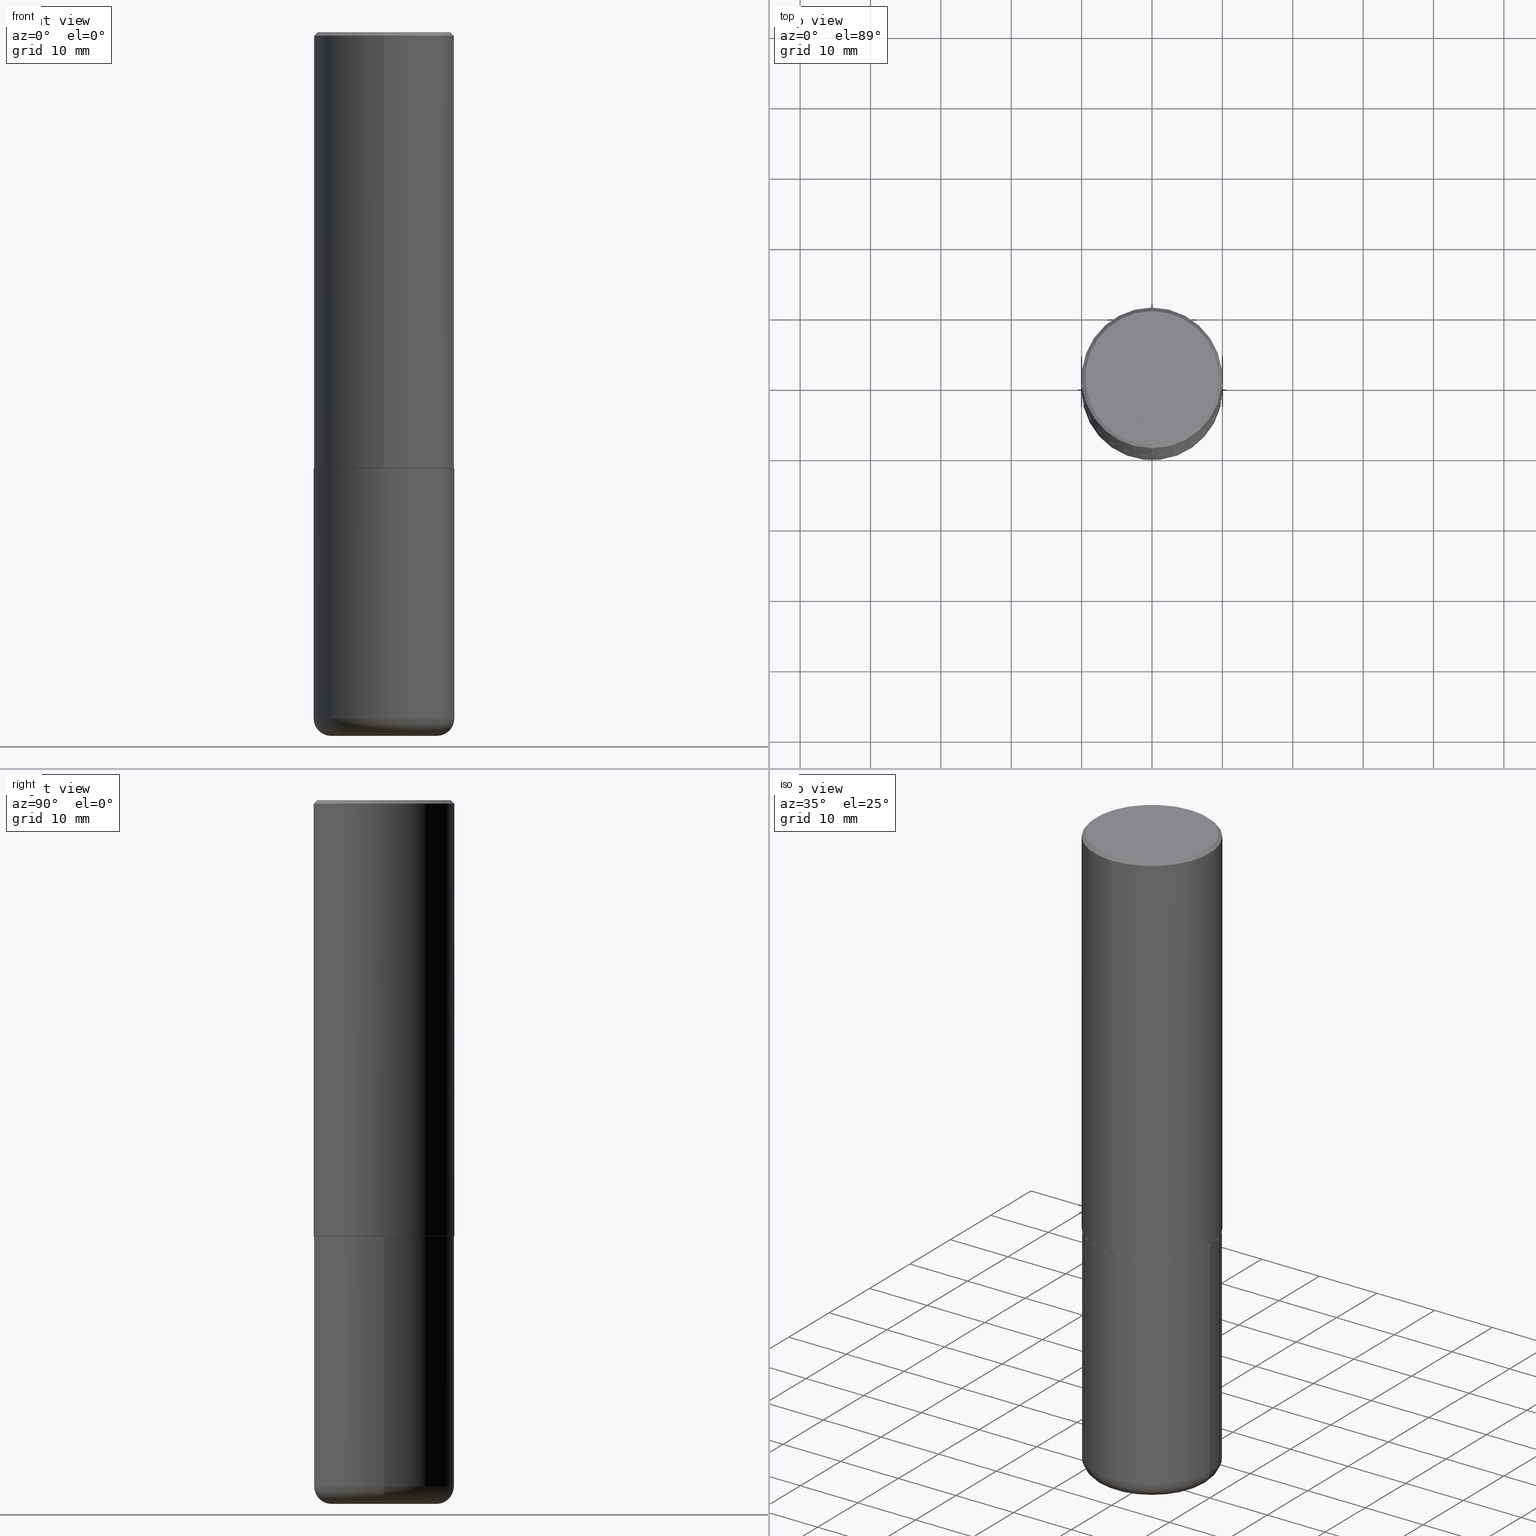
[diagram: canonical four-view strip — front | top / right | iso, engineering-drawing reading convention]
A machine part, canonical four-view strip (front | top / right | iso — engineering-drawing reading convention). The complete STEP part file that produces these views, byte-faithful:
ISO-10303-21;
HEADER;
FILE_DESCRIPTION (( 'STEP AP203' ),
    '1' );
FILE_NAME ('42697.STEP',
    '2024-03-04T02:34:28',
    ( '' ),
    ( '' ),
    'SwSTEP 2.0',
    'SolidWorks 2023',
    '' );
FILE_SCHEMA (( 'CONFIG_CONTROL_DESIGN' ));
ENDSEC;

DATA;
#1 = CARTESIAN_POINT ( 'NONE',  ( 0.2953000000000000069, -1.546446914600405306E-14, -3.838600000000000012 ) ) ;
#2 = EDGE_LOOP ( 'NONE', ( #277, #396, #30, #71 ) ) ;
#3 = CARTESIAN_POINT ( 'NONE',  ( 5.971272106599385031E-29, -8.519310388766430504E-15, -2.440900000000000070 ) ) ;
#4 = ORIENTED_EDGE ( 'NONE', *, *, #339, .F. ) ;
#5 = VERTEX_POINT ( 'NONE', #80 ) ;
#6 = DIRECTION ( 'NONE',  ( 0.000000000000000000, 0.000000000000000000, 1.000000000000000000 ) ) ;
#7 = CARTESIAN_POINT ( 'NONE',  ( 2.749192406205084005E-15, 0.3937000000000000499, -0.02000000000000146105 ) ) ;
#8 = CALENDAR_DATE ( 2024, 3, 3 ) ;
#9 = ORIENTED_EDGE ( 'NONE', *, *, #236, .T. ) ;
#10 = DATE_TIME_ROLE ( 'classification_date' ) ;
#11 = AXIS2_PLACEMENT_3D ( 'NONE', #184, #190, #18 ) ;
#12 = PLANE ( 'NONE',  #67 ) ;
#13 = PERSON_AND_ORGANIZATION ( #232, #335 ) ;
#14 = LINE ( 'NONE', #141, #125 ) ;
#15 = EDGE_CURVE ( 'NONE', #160, #68, #182, .T. ) ;
#16 = CLOSED_SHELL ( 'NONE', ( #34, #172, #387, #301, #58, #378, #53, #251 ) ) ;
#17 = LINE ( 'NONE', #142, #312 ) ;
#18 = DIRECTION ( 'NONE',  ( -6.982962677686265133E-15, -1.000000000000000000, 3.491137977679279029E-15 ) ) ;
#19 = CC_DESIGN_APPROVAL ( #185, ( #286 ) ) ;
#20 = LOCAL_TIME ( 21, 34, 28.00000000000000000, #405 ) ;
#21 = DIRECTION ( 'NONE',  ( -6.982962677686265922E-15, -1.000000000000000000, 3.490233270009598978E-15 ) ) ;
#22 = CARTESIAN_POINT ( 'NONE',  ( 5.969144809017300159E-29, -8.522356799982234543E-15, -2.440900000000000070 ) ) ;
#23 = CARTESIAN_POINT ( 'NONE',  ( -2.632373081744935132E-15, -0.3736999999999997546, 1.628240718927121042E-15 ) ) ;
#24 = AXIS2_PLACEMENT_3D ( 'NONE', #356, #162, #60 ) ;
#25 = CARTESIAN_POINT ( 'NONE',  ( 5.968825766271391436E-29, -8.515820155496419489E-15, -2.439900000000000180 ) ) ;
#26 = ORIENTED_EDGE ( 'NONE', *, *, #219, .F. ) ;
#27 = CC_DESIGN_DATE_AND_TIME_ASSIGNMENT ( #310, #209, ( #289 ) ) ;
#28 = DIRECTION ( 'NONE',  ( 1.000000000000000000, -6.982962677686270655E-15, 0.000000000000000000 ) ) ;
#29 = APPLICATION_CONTEXT ( 'configuration controlled 3d designs of mechanical parts and assemblies' ) ;
#30 = ORIENTED_EDGE ( 'NONE', *, *, #31, .T. ) ;
#31 = EDGE_CURVE ( 'NONE', #68, #44, #14, .T. ) ;
#32 =( GEOMETRIC_REPRESENTATION_CONTEXT ( 3 ) GLOBAL_UNCERTAINTY_ASSIGNED_CONTEXT ( ( #170 ) ) GLOBAL_UNIT_ASSIGNED_CONTEXT ( ( #260, #97, #264 ) ) REPRESENTATION_CONTEXT ( 'NONE', 'WORKASPACE' ) );
#33 = ORIENTED_EDGE ( 'NONE', *, *, #364, .T. ) ;
#34 = ADVANCED_FACE ( 'NONE', ( #112 ), #140, .T. ) ;
#35 = CIRCLE ( 'NONE', #275, 0.3937000000000003830 ) ;
#36 = VERTEX_POINT ( 'NONE', #7 ) ;
#37 = FACE_OUTER_BOUND ( 'NONE', #404, .T. ) ;
#38 = ORIENTED_EDGE ( 'NONE', *, *, #94, .T. ) ;
#39 = APPROVAL_PERSON_ORGANIZATION ( #302, #110, #77 ) ;
#40 = CARTESIAN_POINT ( 'NONE',  ( -2.700978061722651647E-15, -0.3937000000000001609, -0.01999999999999870978 ) ) ;
#41 = APPLICATION_PROTOCOL_DEFINITION ( 'international standard', 'config_control_design', 1994, #391 ) ;
#42 = ORIENTED_EDGE ( 'NONE', *, *, #219, .T. ) ;
#43 = CARTESIAN_POINT ( 'NONE',  ( 5.971272106599385031E-29, -8.519310388766430504E-15, -2.440900000000000070 ) ) ;
#44 = VERTEX_POINT ( 'NONE', #75 ) ;
#45 = AXIS2_PLACEMENT_3D ( 'NONE', #193, #99, #417 ) ;
#46 = COORDINATED_UNIVERSAL_TIME_OFFSET ( 5, 0, .BEHIND. ) ;
#47 = ADVANCED_FACE ( 'NONE', ( #210 ), #12, .F. ) ;
#48 = PLANE ( 'NONE',  #211 ) ;
#49 = DIMENSIONAL_EXPONENTS ( 1.000000000000000000, 0.000000000000000000, 0.000000000000000000, 0.000000000000000000, 0.000000000000000000, 0.000000000000000000, 0.000000000000000000 ) ;
#50 = DIRECTION ( 'NONE',  ( 6.982962677686265922E-15, 1.000000000000000000, -3.490233270009598583E-15 ) ) ;
#51 = DIRECTION ( 'NONE',  ( -2.445468806185136597E-29, 3.491481338843145583E-15, 1.000000000000000000 ) ) ;
#52 = APPROVAL_PERSON_ORGANIZATION ( #13, #185, #276 ) ;
#53 = ADVANCED_FACE ( 'NONE', ( #206 ), #48, .F. ) ;
#54 = AXIS2_PLACEMENT_3D ( 'NONE', #298, #331, #324 ) ;
#55 = DIRECTION ( 'NONE',  ( 1.000000000000000000, -6.982962677686266711E-15, 4.876176775795935793E-29 ) ) ;
#56 = AXIS2_PLACEMENT_3D ( 'NONE', #245, #377, #240 ) ;
#57 = DIRECTION ( 'NONE',  ( 2.446340327993520464E-29, -3.490233270009598583E-15, -1.000000000000000000 ) ) ;
#58 = ADVANCED_FACE ( 'NONE', ( #78 ), #314, .T. ) ;
#59 = DIRECTION ( 'NONE',  ( -2.445468806185136597E-29, 3.491481338843145583E-15, 1.000000000000000000 ) ) ;
#60 = DIRECTION ( 'NONE',  ( -6.982962677686265133E-15, -1.000000000000000000, 3.491137977679279029E-15 ) ) ;
#61 = CIRCLE ( 'NONE', #96, 0.3937000000000001054 ) ;
#62 = LENGTH_MEASURE_WITH_UNIT ( LENGTH_MEASURE( 0.02539999999999999897 ), #415 );
#63 = VERTEX_POINT ( 'NONE', #303 ) ;
#64 = ORIENTED_EDGE ( 'NONE', *, *, #76, .F. ) ;
#65 = LINE ( 'NONE', #225, #386 ) ;
#66 = DIRECTION ( 'NONE',  ( 4.937700262164537787E-15, 0.7071067811865436870, -0.7071067811865513475 ) ) ;
#67 = AXIS2_PLACEMENT_3D ( 'NONE', #341, #205, #346 ) ;
#68 = VERTEX_POINT ( 'NONE', #109 ) ;
#69 = DIRECTION ( 'NONE',  ( -2.445468806185136597E-29, 3.491481338843145583E-15, 1.000000000000000000 ) ) ;
#70 = TOROIDAL_SURFACE ( 'NONE', #54, 0.2953000000000000069, 0.09839999999999987645 ) ;
#71 = ORIENTED_EDGE ( 'NONE', *, *, #146, .F. ) ;
#72 = CC_DESIGN_DATE_AND_TIME_ASSIGNMENT ( #307, #10, ( #280 ) ) ;
#73 = SHAPE_DEFINITION_REPRESENTATION ( #411, #81 ) ;
#74 = CIRCLE ( 'NONE', #347, 0.3937000000000000499 ) ;
#75 = CARTESIAN_POINT ( 'NONE',  ( -2.749192406205025630E-15, -0.3937000000000088762, -2.439899999999998847 ) ) ;
#76 = EDGE_CURVE ( 'NONE', #402, #194, #17, .T. ) ;
#77 = APPROVAL_ROLE ( '' ) ;
#78 = FACE_OUTER_BOUND ( 'NONE', #373, .T. ) ;
#79 = PERSON_AND_ORGANIZATION ( #232, #335 ) ;
#80 = CARTESIAN_POINT ( 'NONE',  ( 2.797406750687546341E-15, 0.3936999999999918343, -2.439900000000001512 ) ) ;
#81 = ADVANCED_BREP_SHAPE_REPRESENTATION ( '42697', ( #390, #104, #253 ), #32 ) ;
#82 = LINE ( 'NONE', #249, #392 ) ;
#83 = DIRECTION ( 'NONE',  ( -2.445468806185136877E-29, 3.491481338843145188E-15, 1.000000000000000000 ) ) ;
#84 = ADVANCED_FACE ( 'NONE', ( #407 ), #247, .T. ) ;
#85 = CARTESIAN_POINT ( 'NONE',  ( 9.627810689950881427E-29, -1.374596203102546184E-14, -3.936999999999999389 ) ) ;
#86 = CYLINDRICAL_SURFACE ( 'NONE', #148, 0.3937000000000002164 ) ;
#87 = DIRECTION ( 'NONE',  ( -1.000000000000000000, 6.982962677686265922E-15, -4.876176775795935793E-29 ) ) ;
#88 = CC_DESIGN_PERSON_AND_ORGANIZATION_ASSIGNMENT ( #134, #108, ( #222 ) ) ;
#89 = LINE ( 'NONE', #290, #167 ) ;
#90 = PRODUCT_RELATED_PRODUCT_CATEGORY ( 'detail', '', ( #222 ) ) ;
#91 = DESIGN_CONTEXT ( 'detailed design', #29, 'design' ) ;
#92 = LOCAL_TIME ( 21, 34, 28.00000000000000000, #46 ) ;
#93 = DIRECTION ( 'NONE',  ( 1.000000000000000000, -6.982962677686271444E-15, 0.000000000000000000 ) ) ;
#94 = EDGE_CURVE ( 'NONE', #174, #199, #334, .T. ) ;
#95 = EDGE_LOOP ( 'NONE', ( #267, #229, #26, #64 ) ) ;
#96 = AXIS2_PLACEMENT_3D ( 'NONE', #319, #191, #188 ) ;
#97 =( NAMED_UNIT ( * ) PLANE_ANGLE_UNIT ( ) SI_UNIT ( $, .RADIAN. ) );
#98 = ORIENTED_EDGE ( 'NONE', *, *, #368, .F. ) ;
#99 = DIRECTION ( 'NONE',  ( -2.445468806185136597E-29, 3.491481338843145583E-15, 1.000000000000000000 ) ) ;
#100 = AXIS2_PLACEMENT_3D ( 'NONE', #293, #397, #28 ) ;
#101 = CARTESIAN_POINT ( 'NONE',  ( 5.971272106599385031E-29, -8.519310388766430504E-15, -2.440900000000000070 ) ) ;
#102 = VERTEX_POINT ( 'NONE', #135 ) ;
#103 = DATE_AND_TIME ( #238, #258 ) ;
#104 = MANIFOLD_SOLID_BREP ( 'Body-Move/Copy2[2]', #16 ) ;
#105 = ORIENTED_EDGE ( 'NONE', *, *, #130, .T. ) ;
#106 = CALENDAR_DATE ( 2024, 3, 3 ) ;
#107 = ORIENTED_EDGE ( 'NONE', *, *, #76, .T. ) ;
#108 = PERSON_AND_ORGANIZATION_ROLE ( 'design_owner' ) ;
#109 = CARTESIAN_POINT ( 'NONE',  ( -2.742209443527336854E-15, -0.3927000000000085422, -2.440899999999998737 ) ) ;
#110 = APPROVAL ( #204, 'UNSPECIFIED' ) ;
#111 = DATE_AND_TIME ( #106, #20 ) ;
#112 = FACE_OUTER_BOUND ( 'NONE', #311, .T. ) ;
#113 = DIRECTION ( 'NONE',  ( -6.982962677686265922E-15, -1.000000000000000000, 3.490233270009598583E-15 ) ) ;
#114 = AXIS2_PLACEMENT_3D ( 'NONE', #3, #198, #224 ) ;
#115 = CARTESIAN_POINT ( 'NONE',  ( -0.2953000000000000069, -1.130416756858372220E-14, -3.838600000000000012 ) ) ;
#116 = AXIS2_PLACEMENT_3D ( 'NONE', #85, #59, #217 ) ;
#117 = DIRECTION ( 'NONE',  ( -2.445468806185136597E-29, 3.491481338843145583E-15, 1.000000000000000000 ) ) ;
#118 = DIRECTION ( 'NONE',  ( -2.446340327993520744E-29, 3.490233270009598583E-15, 1.000000000000000000 ) ) ;
#119 = AXIS2_PLACEMENT_3D ( 'NONE', #327, #255, #266 ) ;
#120 = PLANE ( 'NONE',  #216 ) ;
#121 = DIRECTION ( 'NONE',  ( -2.446340327993520744E-29, 3.490233270009598583E-15, 1.000000000000000000 ) ) ;
#122 = ORIENTED_EDGE ( 'NONE', *, *, #94, .F. ) ;
#123 = DIRECTION ( 'NONE',  ( -2.446340327993520744E-29, 3.490233270009598583E-15, 1.000000000000000000 ) ) ;
#124 = ORIENTED_EDGE ( 'NONE', *, *, #163, .T. ) ;
#125 = VECTOR ( 'NONE', #375, 39.37007874015748143 ) ;
#126 = CARTESIAN_POINT ( 'NONE',  ( -7.924688213674265849E-45, 1.130628070890883733E-30, 3.239405459245348190E-16 ) ) ;
#127 = ORIENTED_EDGE ( 'NONE', *, *, #31, .F. ) ;
#128 = FACE_OUTER_BOUND ( 'NONE', #2, .T. ) ;
#129 = EDGE_LOOP ( 'NONE', ( #42, #9 ) ) ;
#130 = EDGE_CURVE ( 'NONE', #102, #418, #262, .T. ) ;
#131 = SECURITY_CLASSIFICATION_LEVEL ( 'unclassified' ) ;
#132 = VERTEX_POINT ( 'NONE', #408 ) ;
#133 = CIRCLE ( 'NONE', #116, 0.2953000000000000069 ) ;
#134 = PERSON_AND_ORGANIZATION ( #232, #335 ) ;
#135 = CARTESIAN_POINT ( 'NONE',  ( -0.2953000000000000069, -1.112636142446083581E-14, -3.936999999999999389 ) ) ;
#136 = EDGE_LOOP ( 'NONE', ( #406, #105, #360, #4 ) ) ;
#137 = APPROVAL_DATE_TIME ( #103, #168 ) ;
#138 = CC_DESIGN_PERSON_AND_ORGANIZATION_ASSIGNMENT ( #79, #345, ( #286 ) ) ;
#139 = DIRECTION ( 'NONE',  ( -6.982962677686265922E-15, -1.000000000000000000, 3.490233270009598189E-15 ) ) ;
#140 = CONICAL_SURFACE ( 'NONE', #56, 0.3926999999999999935, 0.7853981633975849475 ) ;
#141 = CARTESIAN_POINT ( 'NONE',  ( -2.742209443527336854E-15, -0.3927000000000085422, -2.440899999999998737 ) ) ;
#142 = CARTESIAN_POINT ( 'NONE',  ( 0.3937000000000001054, -2.749192406205084005E-15, 1.919750796630860452E-29 ) ) ;
#143 = EDGE_CURVE ( 'NONE', #174, #63, #380, .T. ) ;
#144 = CARTESIAN_POINT ( 'NONE',  ( 0.000000000000000000, 0.000000000000000000, 0.000000000000000000 ) ) ;
#145 = AXIS2_PLACEMENT_3D ( 'NONE', #126, #355, #361 ) ;
#146 = EDGE_CURVE ( 'NONE', #5, #44, #221, .T. ) ;
#147 = DIRECTION ( 'NONE',  ( -2.446340327993520744E-29, 3.490233270009598583E-15, 1.000000000000000000 ) ) ;
#148 = AXIS2_PLACEMENT_3D ( 'NONE', #320, #147, #288 ) ;
#149 = EDGE_CURVE ( 'NONE', #418, #402, #61, .T. ) ;
#150 = DIRECTION ( 'NONE',  ( 5.024295867788748699E-15, 0.7071067811866466046, 0.7071067811864484298 ) ) ;
#151 = FACE_OUTER_BOUND ( 'NONE', #183, .T. ) ;
#152 = DIRECTION ( 'NONE',  ( -6.982962677686265133E-15, -1.000000000000000000, 3.469453890861392812E-15 ) ) ;
#153 = AXIS2_PLACEMENT_3D ( 'NONE', #370, #237, #403 ) ;
#154 = CARTESIAN_POINT ( 'NONE',  ( 0.3936999999999999389, -1.615159267348838211E-14, -3.838600000000000012 ) ) ;
#155 = ORIENTED_EDGE ( 'NONE', *, *, #326, .F. ) ;
#156 = EDGE_CURVE ( 'NONE', #44, #5, #35, .T. ) ;
#157 = DIRECTION ( 'NONE',  ( -6.982962677686266711E-15, -1.000000000000000000, 3.491481338843145583E-15 ) ) ;
#158 = CIRCLE ( 'NONE', #24, 0.3937000000000001054 ) ;
#159 = DIRECTION ( 'NONE',  ( -2.446340327993520744E-29, 3.490233270009598583E-15, 1.000000000000000000 ) ) ;
#160 = VERTEX_POINT ( 'NONE', #250 ) ;
#161 = CLOSED_SHELL ( 'NONE', ( #84, #371, #47, #227, #401, #287 ) ) ;
#162 = DIRECTION ( 'NONE',  ( -2.446340327993520744E-29, 3.490233270009598583E-15, 1.000000000000000000 ) ) ;
#163 = EDGE_CURVE ( 'NONE', #102, #291, #133, .T. ) ;
#164 = ORIENTED_EDGE ( 'NONE', *, *, #364, .F. ) ;
#165 = ORIENTED_EDGE ( 'NONE', *, *, #308, .F. ) ;
#166 = CC_DESIGN_PERSON_AND_ORGANIZATION_ASSIGNMENT ( #400, #333, ( #280 ) ) ;
#167 = VECTOR ( 'NONE', #66, 39.37007874015748143 ) ;
#168 = APPROVAL ( #233, 'UNSPECIFIED' ) ;
#169 = TOROIDAL_SURFACE ( 'NONE', #45, 0.2953000000000000069, 0.09839999999999987645 ) ;
#170 = UNCERTAINTY_MEASURE_WITH_UNIT (LENGTH_MEASURE( 1.000000000000000082E-05 ), #260, 'distance_accuracy_value', 'NONE');
#171 = DIRECTION ( 'NONE',  ( -4.851104656540954020E-15, -0.7071067811865485719, -0.7071067811865464625 ) ) ;
#172 = ADVANCED_FACE ( 'NONE', ( #353 ), #86, .T. ) ;
#173 = CALENDAR_DATE ( 2024, 3, 3 ) ;
#174 = VERTEX_POINT ( 'NONE', #23 ) ;
#175 = PERSON_AND_ORGANIZATION_ROLE ( 'creator' ) ;
#176 = AXIS2_PLACEMENT_3D ( 'NONE', #317, #117, #252 ) ;
#177 = CARTESIAN_POINT ( 'NONE',  ( 0.000000000000000000, 0.000000000000000000, 0.000000000000000000 ) ) ;
#178 = APPLICATION_PROTOCOL_DEFINITION ( 'international standard', 'config_control_design', 1994, #29 ) ;
#179 = CONICAL_SURFACE ( 'NONE', #354, 0.3937000000000001054, 0.7853981633974463916 ) ;
#180 = ORIENTED_EDGE ( 'NONE', *, *, #308, .T. ) ;
#181 = CARTESIAN_POINT ( 'NONE',  ( 0.000000000000000000, 0.000000000000000000, 0.000000000000000000 ) ) ;
#182 = CIRCLE ( 'NONE', #153, 0.3926999999999999935 ) ;
#183 = EDGE_LOOP ( 'NONE', ( #299, #332 ) ) ;
#184 = CARTESIAN_POINT ( 'NONE',  ( 4.892680655987062718E-31, -6.980466540019226157E-17, -0.02000000000000008715 ) ) ;
#185 = APPROVAL ( #336, 'UNSPECIFIED' ) ;
#186 = DIRECTION ( 'NONE',  ( 1.000000000000000000, -6.982962677686267499E-15, 0.000000000000000000 ) ) ;
#187 = CC_DESIGN_APPROVAL ( #168, ( #280 ) ) ;
#188 = DIRECTION ( 'NONE',  ( 1.000000000000000000, -6.982962677686266711E-15, 0.000000000000000000 ) ) ;
#189 = EDGE_CURVE ( 'NONE', #418, #132, #413, .T. ) ;
#190 = DIRECTION ( 'NONE',  ( -2.446340327993520744E-29, 3.490233270009598583E-15, 1.000000000000000000 ) ) ;
#191 = DIRECTION ( 'NONE',  ( -2.445468806185136597E-29, 3.491481338843145583E-15, 1.000000000000000000 ) ) ;
#192 = ORIENTED_EDGE ( 'NONE', *, *, #368, .T. ) ;
#193 = CARTESIAN_POINT ( 'NONE',  ( 9.387176559422264284E-29, -1.340240026728329889E-14, -3.838600000000000012 ) ) ;
#194 = VERTEX_POINT ( 'NONE', #283 ) ;
#195 = CIRCLE ( 'NONE', #11, 0.3937000000000001054 ) ;
#196 = ORIENTED_EDGE ( 'NONE', *, *, #292, .T. ) ;
#197 = LOCAL_TIME ( 21, 34, 28.00000000000000000, #313 ) ;
#198 = DIRECTION ( 'NONE',  ( -2.446340327993520744E-29, 3.490233270009598583E-15, 1.000000000000000000 ) ) ;
#199 = VERTEX_POINT ( 'NONE', #379 ) ;
#200 = VECTOR ( 'NONE', #171, 39.37007874015748143 ) ;
#201 = DIRECTION ( 'NONE',  ( 2.446340327993520744E-29, -3.490233270009598583E-15, -1.000000000000000000 ) ) ;
#202 = DIRECTION ( 'NONE',  ( 1.000000000000000000, -6.982962677686266711E-15, 4.876176775795935793E-29 ) ) ;
#203 = LOCAL_TIME ( 21, 34, 28.00000000000000000, #372 ) ;
#204 = APPROVAL_STATUS ( 'not_yet_approved' ) ;
#205 = DIRECTION ( 'NONE',  ( 2.438088387897960049E-29, -3.491481338843145188E-15, -1.000000000000000000 ) ) ;
#206 = FACE_OUTER_BOUND ( 'NONE', #363, .T. ) ;
#207 = PERSON_AND_ORGANIZATION ( #232, #335 ) ;
#208 = EDGE_LOOP ( 'NONE', ( #122, #98, #196, #272 ) ) ;
#209 = DATE_TIME_ROLE ( 'creation_date' ) ;
#210 = FACE_OUTER_BOUND ( 'NONE', #129, .T. ) ;
#211 = AXIS2_PLACEMENT_3D ( 'NONE', #43, #274, #113 ) ;
#212 = FACE_OUTER_BOUND ( 'NONE', #261, .T. ) ;
#213 = DIRECTION ( 'NONE',  ( 1.000000000000000000, -6.982962677686267499E-15, 0.000000000000000000 ) ) ;
#214 = EDGE_CURVE ( 'NONE', #160, #5, #82, .T. ) ;
#215 = AXIS2_PLACEMENT_3D ( 'NONE', #348, #57, #50 ) ;
#216 = AXIS2_PLACEMENT_3D ( 'NONE', #254, #385, #87 ) ;
#217 = DIRECTION ( 'NONE',  ( 1.000000000000000000, -6.982962677686270655E-15, 0.000000000000000000 ) ) ;
#218 = CIRCLE ( 'NONE', #398, 0.3926999999999999935 ) ;
#219 = EDGE_CURVE ( 'NONE', #194, #132, #74, .T. ) ;
#220 = FACE_OUTER_BOUND ( 'NONE', #226, .T. ) ;
#221 = CIRCLE ( 'NONE', #241, 0.3937000000000003830 ) ;
#222 = PRODUCT ( '42697', '42697', '', ( #374 ) ) ;
#223 = DIRECTION ( 'NONE',  ( -2.446340327993520744E-29, 3.490233270009598583E-15, 1.000000000000000000 ) ) ;
#224 = DIRECTION ( 'NONE',  ( -6.982962677686265133E-15, -1.000000000000000000, 3.478288761986584267E-15 ) ) ;
#225 = CARTESIAN_POINT ( 'NONE',  ( -2.749192406205084400E-15, -0.3937000000000002164, 1.374104838402779619E-15 ) ) ;
#226 = EDGE_LOOP ( 'NONE', ( #192, #325 ) ) ;
#227 = ADVANCED_FACE ( 'NONE', ( #212 ), #349, .T. ) ;
#228 = CARTESIAN_POINT ( 'NONE',  ( -0.3936999999999999389, -1.060499351659578174E-14, -3.838600000000000012 ) ) ;
#229 = ORIENTED_EDGE ( 'NONE', *, *, #189, .T. ) ;
#230 = EDGE_CURVE ( 'NONE', #5, #36, #318, .T. ) ;
#231 = CARTESIAN_POINT ( 'NONE',  ( 4.892680655987062718E-31, -6.980466540019226157E-17, -0.02000000000000008715 ) ) ;
#232 = PERSON ( 'UNSPECIFIED', 'UNSPECIFIED', 'UNSPECIFIED', ('UNSPECIFIED'), ('UNSPECIFIED'), ('UNSPECIFIED') ) ;
#233 = APPROVAL_STATUS ( 'not_yet_approved' ) ;
#234 = ORIENTED_EDGE ( 'NONE', *, *, #149, .T. ) ;
#235 = CALENDAR_DATE ( 2024, 3, 3 ) ;
#236 = EDGE_CURVE ( 'NONE', #132, #194, #297, .T. ) ;
#237 = DIRECTION ( 'NONE',  ( -2.446340327993520744E-29, 3.490233270009598583E-15, 1.000000000000000000 ) ) ;
#238 = CALENDAR_DATE ( 2024, 3, 3 ) ;
#239 = CIRCLE ( 'NONE', #100, 0.2953000000000000069 ) ;
#240 = DIRECTION ( 'NONE',  ( -6.982962677686265133E-15, -1.000000000000000000, 3.478288761986584267E-15 ) ) ;
#241 = AXIS2_PLACEMENT_3D ( 'NONE', #410, #284, #152 ) ;
#242 = DATE_AND_TIME ( #8, #203 ) ;
#243 = ORIENTED_EDGE ( 'NONE', *, *, #130, .F. ) ;
#244 = APPROVAL_DATE_TIME ( #111, #185 ) ;
#245 = CARTESIAN_POINT ( 'NONE',  ( 5.971272106599385031E-29, -8.519310388766430504E-15, -2.440900000000000070 ) ) ;
#246 = CC_DESIGN_PERSON_AND_ORGANIZATION_ASSIGNMENT ( #207, #342, ( #289 ) ) ;
#247 = CYLINDRICAL_SURFACE ( 'NONE', #282, 0.3937000000000001054 ) ;
#248 = EDGE_CURVE ( 'NONE', #402, #418, #414, .T. ) ;
#249 = CARTESIAN_POINT ( 'NONE',  ( 2.790301323329972943E-15, 0.3926999999999915003, -2.440900000000001402 ) ) ;
#250 = CARTESIAN_POINT ( 'NONE',  ( 2.793854037008774630E-15, 0.3926999999999915003, -2.440900000000001402 ) ) ;
#251 = ADVANCED_FACE ( 'NONE', ( #220 ), #352, .F. ) ;
#252 = DIRECTION ( 'NONE',  ( 1.000000000000000000, -6.982962677686266711E-15, 0.000000000000000000 ) ) ;
#253 = AXIS2_PLACEMENT_3D ( 'NONE', #181, #6, #340 ) ;
#254 = CARTESIAN_POINT ( 'NONE',  ( 1.471441804456543117E-28, -6.461650787506198718E-15, -3.937000000000000277 ) ) ;
#255 = DIRECTION ( 'NONE',  ( 2.446340327993520744E-29, -3.490233270009598583E-15, -1.000000000000000000 ) ) ;
#256 = APPROVAL_PERSON_ORGANIZATION ( #268, #168, #399 ) ;
#257 = ORIENTED_EDGE ( 'NONE', *, *, #339, .T. ) ;
#258 = LOCAL_TIME ( 21, 34, 28.00000000000000000, #304 ) ;
#259 = CONICAL_SURFACE ( 'NONE', #119, 0.3937000000000001054, 0.7853981633974463916 ) ;
#260 =( CONVERSION_BASED_UNIT ( 'INCH', #62 ) LENGTH_UNIT ( ) NAMED_UNIT ( #49 ) );
#261 = EDGE_LOOP ( 'NONE', ( #337, #234, #107, #416 ) ) ;
#262 = CIRCLE ( 'NONE', #269, 0.09839999999999986258 ) ;
#263 = AXIS2_PLACEMENT_3D ( 'NONE', #144, #409, #55 ) ;
#264 =( NAMED_UNIT ( * ) SI_UNIT ( $, .STERADIAN. ) SOLID_ANGLE_UNIT ( ) );
#265 = ORIENTED_EDGE ( 'NONE', *, *, #230, .T. ) ;
#266 = DIRECTION ( 'NONE',  ( 6.982962677686265133E-15, 1.000000000000000000, -3.491137977679279029E-15 ) ) ;
#267 = ORIENTED_EDGE ( 'NONE', *, *, #248, .T. ) ;
#268 = PERSON_AND_ORGANIZATION ( #232, #335 ) ;
#269 = AXIS2_PLACEMENT_3D ( 'NONE', #115, #281, #381 ) ;
#270 = APPROVAL_DATE_TIME ( #242, #110 ) ;
#271 = CARTESIAN_POINT ( 'NONE',  ( 0.000000000000000000, 0.000000000000000000, 0.000000000000000000 ) ) ;
#272 = ORIENTED_EDGE ( 'NONE', *, *, #278, .T. ) ;
#273 = CC_DESIGN_APPROVAL ( #110, ( #289 ) ) ;
#274 = DIRECTION ( 'NONE',  ( -2.446340327993520464E-29, 3.490233270009598583E-15, 1.000000000000000000 ) ) ;
#275 = AXIS2_PLACEMENT_3D ( 'NONE', #25, #121, #382 ) ;
#276 = APPROVAL_ROLE ( '' ) ;
#277 = ORIENTED_EDGE ( 'NONE', *, *, #214, .F. ) ;
#278 = EDGE_CURVE ( 'NONE', #36, #199, #195, .T. ) ;
#279 = DIRECTION ( 'NONE',  ( -2.445468806185136877E-29, 3.491481338843145188E-15, 1.000000000000000000 ) ) ;
#280 = SECURITY_CLASSIFICATION ( '', '', #131 ) ;
#281 = DIRECTION ( 'NONE',  ( 7.105427357601001859E-15, 1.000000000000000000, -3.491481338843145583E-15 ) ) ;
#282 = AXIS2_PLACEMENT_3D ( 'NONE', #271, #69, #202 ) ;
#283 = CARTESIAN_POINT ( 'NONE',  ( 0.3937000000000000499, -1.127154920618731776E-14, -2.440900000000000070 ) ) ;
#284 = DIRECTION ( 'NONE',  ( -2.446340327993520744E-29, 3.490233270009598583E-15, 1.000000000000000000 ) ) ;
#285 = CARTESIAN_POINT ( 'NONE',  ( -0.3937000000000001054, 2.797406750687515181E-15, -1.936584745033357016E-29 ) ) ;
#286 = PRODUCT_DEFINITION_FORMATION_WITH_SPECIFIED_SOURCE ( 'ANY', '', #222, .NOT_KNOWN. ) ;
#287 = ADVANCED_FACE ( 'NONE', ( #151 ), #120, .T. ) ;
#288 = DIRECTION ( 'NONE',  ( -6.982962677686265922E-15, -1.000000000000000000, 3.490233270009598189E-15 ) ) ;
#289 = PRODUCT_DEFINITION ( 'UNKNOWN', '', #286, #91 ) ;
#290 = CARTESIAN_POINT ( 'NONE',  ( 2.749192406205084005E-15, 0.3937000000000000499, -0.02000000000000146105 ) ) ;
#291 = VERTEX_POINT ( 'NONE', #395 ) ;
#292 = EDGE_CURVE ( 'NONE', #63, #36, #89, .T. ) ;
#293 = CARTESIAN_POINT ( 'NONE',  ( 9.627810689950881427E-29, -1.374596203102546184E-14, -3.936999999999999389 ) ) ;
#294 = ORIENTED_EDGE ( 'NONE', *, *, #15, .F. ) ;
#295 = CONICAL_SURFACE ( 'NONE', #114, 0.3926999999999999935, 0.7853981633975849475 ) ;
#296 = ORIENTED_EDGE ( 'NONE', *, *, #156, .F. ) ;
#297 = CIRCLE ( 'NONE', #358, 0.3937000000000000499 ) ;
#298 = CARTESIAN_POINT ( 'NONE',  ( 9.387176559422264284E-29, -1.340240026728329889E-14, -3.838600000000000012 ) ) ;
#299 = ORIENTED_EDGE ( 'NONE', *, *, #323, .F. ) ;
#300 = ORIENTED_EDGE ( 'NONE', *, *, #143, .F. ) ;
#301 = ADVANCED_FACE ( 'NONE', ( #329 ), #259, .T. ) ;
#302 = PERSON_AND_ORGANIZATION ( #232, #335 ) ;
#303 = CARTESIAN_POINT ( 'NONE',  ( 2.679362779428219524E-15, 0.3736999999999997546, -9.803596270780514040E-16 ) ) ;
#304 = COORDINATED_UNIVERSAL_TIME_OFFSET ( 5, 0, .BEHIND. ) ;
#305 = EDGE_LOOP ( 'NONE', ( #300, #38, #180, #328 ) ) ;
#306 = VECTOR ( 'NONE', #118, 39.37007874015748143 ) ;
#307 = DATE_AND_TIME ( #235, #92 ) ;
#308 = EDGE_CURVE ( 'NONE', #199, #36, #158, .T. ) ;
#309 = DIRECTION ( 'NONE',  ( -2.446340327993520744E-29, 3.490233270009598583E-15, 1.000000000000000000 ) ) ;
#310 = DATE_AND_TIME ( #173, #197 ) ;
#311 = EDGE_LOOP ( 'NONE', ( #343, #357, #296, #127 ) ) ;
#312 = VECTOR ( 'NONE', #279, 39.37007874015748143 ) ;
#313 = COORDINATED_UNIVERSAL_TIME_OFFSET ( 5, 0, .BEHIND. ) ;
#314 = CYLINDRICAL_SURFACE ( 'NONE', #351, 0.3937000000000002164 ) ;
#315 = DIRECTION ( 'NONE',  ( -2.445468806185136597E-29, 3.491481338843145583E-15, 1.000000000000000000 ) ) ;
#316 = CC_DESIGN_SECURITY_CLASSIFICATION ( #280, ( #286 ) ) ;
#317 = CARTESIAN_POINT ( 'NONE',  ( 9.387176559422264284E-29, -1.340240026728329889E-14, -3.838600000000000012 ) ) ;
#318 = LINE ( 'NONE', #412, #306 ) ;
#319 = CARTESIAN_POINT ( 'NONE',  ( 9.387176559422264284E-29, -1.340240026728329889E-14, -3.838600000000000012 ) ) ;
#320 = CARTESIAN_POINT ( 'NONE',  ( 0.000000000000000000, 0.000000000000000000, 0.000000000000000000 ) ) ;
#321 = FACE_OUTER_BOUND ( 'NONE', #305, .T. ) ;
#322 = ORIENTED_EDGE ( 'NONE', *, *, #149, .F. ) ;
#323 = EDGE_CURVE ( 'NONE', #291, #102, #239, .T. ) ;
#324 = DIRECTION ( 'NONE',  ( 1.000000000000000000, -6.982962677686265922E-15, 4.883557194083112340E-29 ) ) ;
#325 = ORIENTED_EDGE ( 'NONE', *, *, #143, .T. ) ;
#326 = EDGE_CURVE ( 'NONE', #68, #160, #218, .T. ) ;
#327 = CARTESIAN_POINT ( 'NONE',  ( 4.892680655987062718E-31, -6.980466540019226157E-17, -0.02000000000000008715 ) ) ;
#328 = ORIENTED_EDGE ( 'NONE', *, *, #292, .F. ) ;
#329 = FACE_OUTER_BOUND ( 'NONE', #208, .T. ) ;
#330 = ORIENTED_EDGE ( 'NONE', *, *, #230, .F. ) ;
#331 = DIRECTION ( 'NONE',  ( -2.445468806185136597E-29, 3.491481338843145583E-15, 1.000000000000000000 ) ) ;
#332 = ORIENTED_EDGE ( 'NONE', *, *, #163, .F. ) ;
#333 = PERSON_AND_ORGANIZATION_ROLE ( 'classification_officer' ) ;
#334 = LINE ( 'NONE', #40, #200 ) ;
#335 = ORGANIZATION ( 'UNSPECIFIED', 'UNSPECIFIED', '' ) ;
#336 = APPROVAL_STATUS ( 'not_yet_approved' ) ;
#337 = ORIENTED_EDGE ( 'NONE', *, *, #189, .F. ) ;
#338 = VECTOR ( 'NONE', #83, 39.37007874015748143 ) ;
#339 = EDGE_CURVE ( 'NONE', #291, #402, #383, .T. ) ;
#340 = DIRECTION ( 'NONE',  ( 1.000000000000000000, 0.000000000000000000, 0.000000000000000000 ) ) ;
#341 = CARTESIAN_POINT ( 'NONE',  ( 5.969144809017300159E-29, -8.522356799982234543E-15, -2.440900000000000070 ) ) ;
#342 = PERSON_AND_ORGANIZATION_ROLE ( 'creator' ) ;
#343 = ORIENTED_EDGE ( 'NONE', *, *, #326, .T. ) ;
#344 = CIRCLE ( 'NONE', #145, 0.3736999999999997546 ) ;
#345 = PERSON_AND_ORGANIZATION_ROLE ( 'design_supplier' ) ;
#346 = DIRECTION ( 'NONE',  ( -1.000000000000000000, 6.982962677686265922E-15, -4.876176775795935793E-29 ) ) ;
#347 = AXIS2_PLACEMENT_3D ( 'NONE', #350, #315, #213 ) ;
#348 = CARTESIAN_POINT ( 'NONE',  ( 2.609533152651355831E-15, 0.3736999999999997546, -1.142329900040318863E-15 ) ) ;
#349 = CYLINDRICAL_SURFACE ( 'NONE', #263, 0.3937000000000001054 ) ;
#350 = CARTESIAN_POINT ( 'NONE',  ( 5.969144809017300159E-29, -8.522356799982234543E-15, -2.440900000000000070 ) ) ;
#351 = AXIS2_PLACEMENT_3D ( 'NONE', #177, #309, #139 ) ;
#352 = PLANE ( 'NONE',  #215 ) ;
#353 = FACE_OUTER_BOUND ( 'NONE', #389, .T. ) ;
#354 = AXIS2_PLACEMENT_3D ( 'NONE', #231, #201, #359 ) ;
#355 = DIRECTION ( 'NONE',  ( -2.446340327993520744E-29, 3.490233270009598583E-15, 1.000000000000000000 ) ) ;
#356 = CARTESIAN_POINT ( 'NONE',  ( 4.892680655987062718E-31, -6.980466540019226157E-17, -0.02000000000000008715 ) ) ;
#357 = ORIENTED_EDGE ( 'NONE', *, *, #214, .T. ) ;
#358 = AXIS2_PLACEMENT_3D ( 'NONE', #22, #51, #186 ) ;
#359 = DIRECTION ( 'NONE',  ( 6.982962677686265133E-15, 1.000000000000000000, -3.491137977679279029E-15 ) ) ;
#360 = ORIENTED_EDGE ( 'NONE', *, *, #248, .F. ) ;
#361 = DIRECTION ( 'NONE',  ( -6.982962677686265922E-15, -1.000000000000000000, 3.490233270009598978E-15 ) ) ;
#362 = AXIS2_PLACEMENT_3D ( 'NONE', #1, #157, #93 ) ;
#363 = EDGE_LOOP ( 'NONE', ( #155, #294 ) ) ;
#364 = EDGE_CURVE ( 'NONE', #44, #199, #65, .T. ) ;
#365 = DIRECTION ( 'NONE',  ( -6.982962677686265133E-15, -1.000000000000000000, 3.478288761986584267E-15 ) ) ;
#366 = ORIENTED_EDGE ( 'NONE', *, *, #156, .T. ) ;
#367 = AXIS2_PLACEMENT_3D ( 'NONE', #384, #223, #21 ) ;
#368 = EDGE_CURVE ( 'NONE', #63, #174, #344, .T. ) ;
#369 = ORIENTED_EDGE ( 'NONE', *, *, #146, .T. ) ;
#370 = CARTESIAN_POINT ( 'NONE',  ( 5.971272106599385031E-29, -8.519310388766430504E-15, -2.440900000000000070 ) ) ;
#371 = ADVANCED_FACE ( 'NONE', ( #388 ), #70, .T. ) ;
#372 = COORDINATED_UNIVERSAL_TIME_OFFSET ( 5, 0, .BEHIND. ) ;
#373 = EDGE_LOOP ( 'NONE', ( #330, #369, #33, #394 ) ) ;
#374 = MECHANICAL_CONTEXT ( 'NONE', #391, 'mechanical' ) ;
#375 = DIRECTION ( 'NONE',  ( -4.937700262165222518E-15, -0.7071067811866417196, 0.7071067811864533148 ) ) ;
#376 = PERSON_AND_ORGANIZATION ( #232, #335 ) ;
#377 = DIRECTION ( 'NONE',  ( -2.446340327993520744E-29, 3.490233270009598583E-15, 1.000000000000000000 ) ) ;
#378 = ADVANCED_FACE ( 'NONE', ( #128 ), #295, .T. ) ;
#379 = CARTESIAN_POINT ( 'NONE',  ( -2.700978061722651647E-15, -0.3937000000000001609, -0.01999999999999870978 ) ) ;
#380 = CIRCLE ( 'NONE', #367, 0.3736999999999997546 ) ;
#381 = DIRECTION ( 'NONE',  ( -1.000000000000000000, 7.105427357601009747E-15, 0.000000000000000000 ) ) ;
#382 = DIRECTION ( 'NONE',  ( -6.982962677686265133E-15, -1.000000000000000000, 3.469453890861392812E-15 ) ) ;
#383 = CIRCLE ( 'NONE', #362, 0.09839999999999986258 ) ;
#384 = CARTESIAN_POINT ( 'NONE',  ( -7.924688213674265849E-45, 1.130628070890883733E-30, 3.239405459245348190E-16 ) ) ;
#385 = DIRECTION ( 'NONE',  ( 2.438088387897960049E-29, -3.491481338843145188E-15, -1.000000000000000000 ) ) ;
#386 = VECTOR ( 'NONE', #123, 39.37007874015748143 ) ;
#387 = ADVANCED_FACE ( 'NONE', ( #321 ), #179, .T. ) ;
#388 = FACE_OUTER_BOUND ( 'NONE', #136, .T. ) ;
#389 = EDGE_LOOP ( 'NONE', ( #366, #265, #165, #164 ) ) ;
#390 = MANIFOLD_SOLID_BREP ( 'Body-Move/Copy2[1]', #161 ) ;
#391 = APPLICATION_CONTEXT ( 'configuration controlled 3d designs of mechanical parts and assemblies' ) ;
#392 = VECTOR ( 'NONE', #150, 39.37007874015748143 ) ;
#393 = CC_DESIGN_PERSON_AND_ORGANIZATION_ASSIGNMENT ( #376, #175, ( #286 ) ) ;
#394 = ORIENTED_EDGE ( 'NONE', *, *, #278, .F. ) ;
#395 = CARTESIAN_POINT ( 'NONE',  ( 0.2953000000000000069, -1.580803090974621758E-14, -3.936999999999999389 ) ) ;
#396 = ORIENTED_EDGE ( 'NONE', *, *, #15, .T. ) ;
#397 = DIRECTION ( 'NONE',  ( -2.445468806185136597E-29, 3.491481338843145583E-15, 1.000000000000000000 ) ) ;
#398 = AXIS2_PLACEMENT_3D ( 'NONE', #101, #159, #365 ) ;
#399 = APPROVAL_ROLE ( '' ) ;
#400 = PERSON_AND_ORGANIZATION ( #232, #335 ) ;
#401 = ADVANCED_FACE ( 'NONE', ( #37 ), #169, .T. ) ;
#402 = VERTEX_POINT ( 'NONE', #154 ) ;
#403 = DIRECTION ( 'NONE',  ( -6.982962677686265133E-15, -1.000000000000000000, 3.478288761986584267E-15 ) ) ;
#404 = EDGE_LOOP ( 'NONE', ( #243, #124, #257, #322 ) ) ;
#405 = COORDINATED_UNIVERSAL_TIME_OFFSET ( 5, 0, .BEHIND. ) ;
#406 = ORIENTED_EDGE ( 'NONE', *, *, #323, .T. ) ;
#407 = FACE_OUTER_BOUND ( 'NONE', #95, .T. ) ;
#408 = CARTESIAN_POINT ( 'NONE',  ( -0.3937000000000000499, -8.164971782945251142E-15, -2.440900000000000070 ) ) ;
#409 = DIRECTION ( 'NONE',  ( -2.445468806185136597E-29, 3.491481338843145583E-15, 1.000000000000000000 ) ) ;
#410 = CARTESIAN_POINT ( 'NONE',  ( 5.968825766271391436E-29, -8.515820155496419489E-15, -2.439900000000000180 ) ) ;
#411 = PRODUCT_DEFINITION_SHAPE ( 'NONE', 'NONE',  #289 ) ;
#412 = CARTESIAN_POINT ( 'NONE',  ( 2.797406750687515575E-15, 0.3937000000000002164, -1.374104838402779619E-15 ) ) ;
#413 = LINE ( 'NONE', #285, #338 ) ;
#414 = CIRCLE ( 'NONE', #176, 0.3937000000000001054 ) ;
#415 =( LENGTH_UNIT ( ) NAMED_UNIT ( * ) SI_UNIT ( $, .METRE. ) );
#416 = ORIENTED_EDGE ( 'NONE', *, *, #236, .F. ) ;
#417 = DIRECTION ( 'NONE',  ( 1.000000000000000000, -6.982962677686265922E-15, 4.883557194083112340E-29 ) ) ;
#418 = VERTEX_POINT ( 'NONE', #228 ) ;
ENDSEC;
END-ISO-10303-21;
